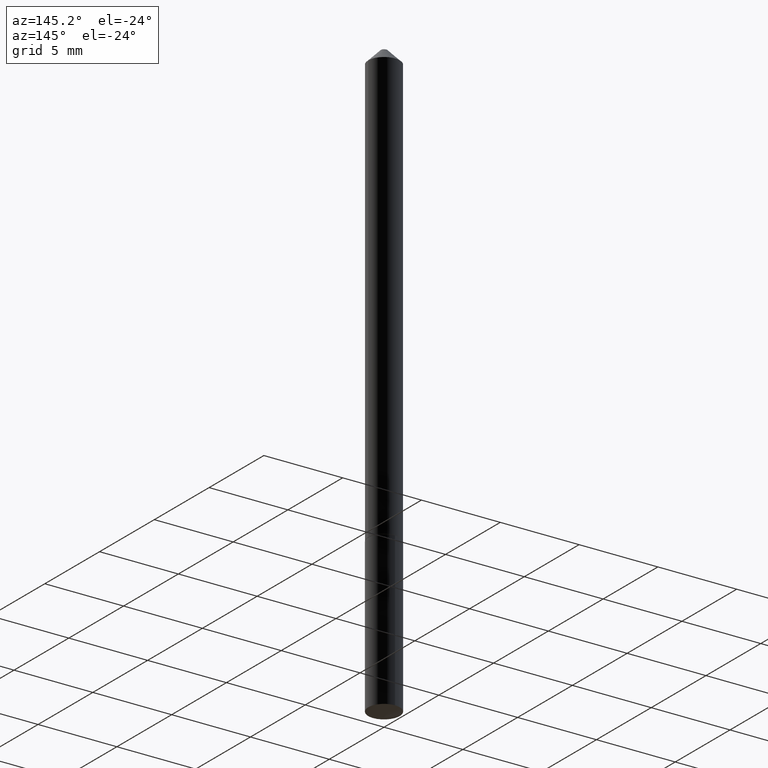
[diagram: clean part render]
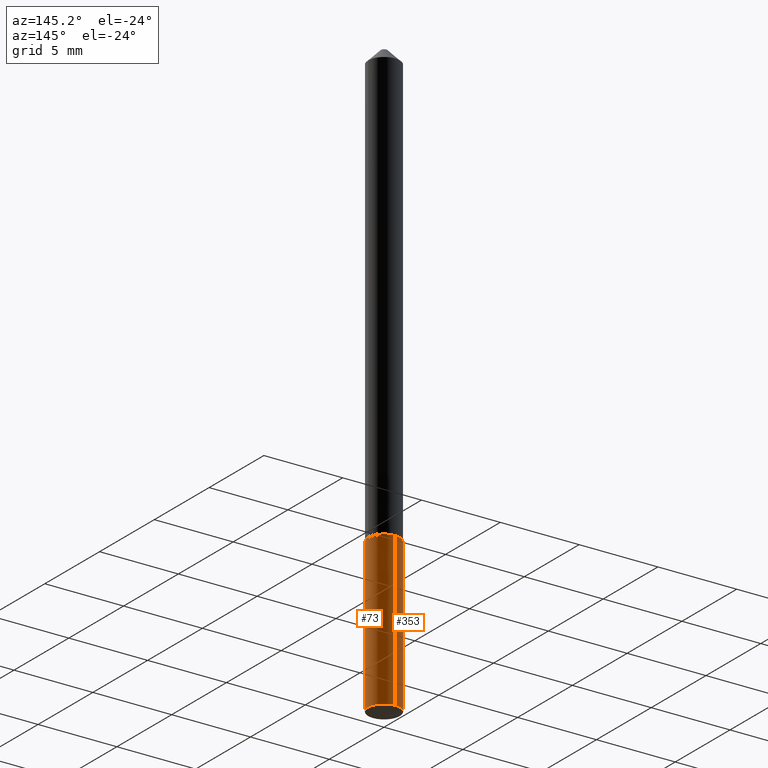
[diagram: same view with one multi-face feature highlighted, each face labeled with its STEP entity id]
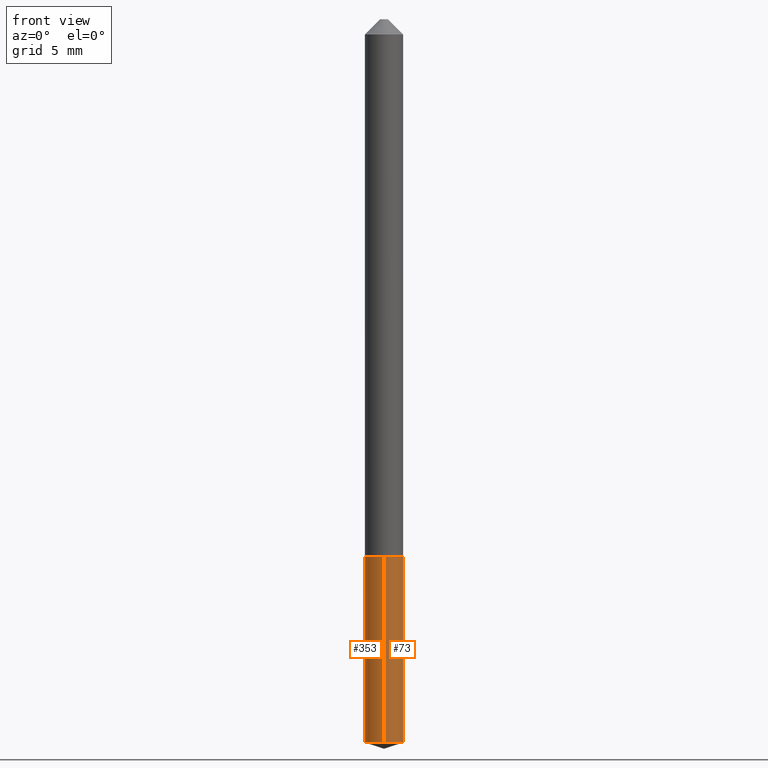
[diagram: same view with one multi-face feature highlighted, each face labeled with its STEP entity id]
A machine part, auxiliary view. The highlighted faces form ONE feature: a constant-radius fillet chain: 2 tangent blend faces with common blend radius 0.9995 mm. The faces share edges in the B-rep.
A second angle (front view) of the same feature is appended — it is thin or edge-on in the first view.
Their STEP definitions:
[1] entity #353 (Cylinder):
#9 = EDGE_CURVE ( 'NONE', #272, #367, #316, .T. ) ;
#22 = CARTESIAN_POINT ( 'NONE',  ( 2.795985665216263153E-16, 0.03934999999999615194, -1.102400000000000047 ) ) ;
#26 = DIRECTION ( 'NONE',  ( -2.445645632149830585E-29, 3.491228113997394942E-15, 1.000000000000000000 ) ) ;
#32 = CARTESIAN_POINT ( 'NONE',  ( -2.747795813669276519E-16, -0.03935000000000385412, -1.102399999999999824 ) ) ;
#37 = DIRECTION ( 'NONE',  ( -2.445645632149830585E-29, 3.491228113997394942E-15, 1.000000000000000000 ) ) ;
#57 = CYLINDRICAL_SURFACE ( 'NONE', #268, 0.03935000000000000303 ) ;
#76 = DIRECTION ( 'NONE',  ( -6.982962677686266711E-15, -1.000000000000000000, 6.942434545525446301E-15 ) ) ;
#81 = ORIENTED_EDGE ( 'NONE', *, *, #253, .F. ) ;
#84 = DIRECTION ( 'NONE',  ( -6.982962677686266711E-15, -1.000000000000000000, 3.471217272762723151E-15 ) ) ;
#88 = ORIENTED_EDGE ( 'NONE', *, *, #9, .T. ) ;
#96 = CARTESIAN_POINT ( 'NONE',  ( -2.747795813669276519E-16, -0.03935000000000385412, -1.102399999999999824 ) ) ;
#105 = CARTESIAN_POINT ( 'NONE',  ( 2.695884811938494470E-29, -3.849009027940684107E-15, -1.102400000000000047 ) ) ;
#118 = ORIENTED_EDGE ( 'NONE', *, *, #149, .F. ) ;
#124 = VERTEX_POINT ( 'NONE', #224 ) ;
#149 = EDGE_CURVE ( 'NONE', #274, #124, #203, .T. ) ;
#179 = CARTESIAN_POINT ( 'NONE',  ( 2.695884811938494470E-29, -3.849009027940684107E-15, -1.102400000000000047 ) ) ;
#180 = EDGE_LOOP ( 'NONE', ( #118, #333, #88, #81 ) ) ;
#203 = LINE ( 'NONE', #22, #360 ) ;
#204 = CIRCLE ( 'NONE', #365, 0.03935000000000000303 ) ;
#209 = AXIS2_PLACEMENT_3D ( 'NONE', #105, #359, #84 ) ;
#224 = CARTESIAN_POINT ( 'NONE',  ( 2.795985665216357323E-16, 0.03934999999999615194, -1.102400000000000047 ) ) ;
#225 = CARTESIAN_POINT ( 'NONE',  ( -2.747795813669182842E-16, -0.03935000000000518638, -1.483692992657611454 ) ) ;
#228 = VECTOR ( 'NONE', #37, 39.37007874015748143 ) ;
#253 = EDGE_CURVE ( 'NONE', #124, #367, #390, .T. ) ;
#263 = CARTESIAN_POINT ( 'NONE',  ( 2.795985665216357323E-16, 0.03934999999999481968, -1.483692992657611898 ) ) ;
#268 = AXIS2_PLACEMENT_3D ( 'NONE', #179, #26, #294 ) ;
#272 = VERTEX_POINT ( 'NONE', #225 ) ;
#274 = VERTEX_POINT ( 'NONE', #263 ) ;
#292 = EDGE_CURVE ( 'NONE', #274, #272, #204, .T. ) ;
#294 = DIRECTION ( 'NONE',  ( -6.982962677686266711E-15, -1.000000000000000000, 3.471217272762723151E-15 ) ) ;
#316 = LINE ( 'NONE', #96, #228 ) ;
#326 = CARTESIAN_POINT ( 'NONE',  ( 3.628392354000919810E-29, -5.180189843577139767E-15, -1.483692992657611676 ) ) ;
#327 = FACE_OUTER_BOUND ( 'NONE', #180, .T. ) ;
#333 = ORIENTED_EDGE ( 'NONE', *, *, #292, .T. ) ;
#352 = DIRECTION ( 'NONE',  ( -2.445645632149830585E-29, 3.491228113997394942E-15, 1.000000000000000000 ) ) ;
#353 = ADVANCED_FACE ( 'NONE', ( #327 ), #57, .T. ) ;
#356 = DIRECTION ( 'NONE',  ( -2.445645632149830585E-29, 3.491228113997394942E-15, 1.000000000000000000 ) ) ;
#359 = DIRECTION ( 'NONE',  ( -2.445645632149830585E-29, 3.491228113997394942E-15, 1.000000000000000000 ) ) ;
#360 = VECTOR ( 'NONE', #352, 39.37007874015748143 ) ;
#365 = AXIS2_PLACEMENT_3D ( 'NONE', #326, #356, #76 ) ;
#367 = VERTEX_POINT ( 'NONE', #32 ) ;
#390 = CIRCLE ( 'NONE', #209, 0.03935000000000000303 ) ;
[2] entity #73 (Cylinder):
#4 = ORIENTED_EDGE ( 'NONE', *, *, #138, .T. ) ;
#9 = EDGE_CURVE ( 'NONE', #272, #367, #316, .T. ) ;
#10 = FACE_OUTER_BOUND ( 'NONE', #93, .T. ) ;
#22 = CARTESIAN_POINT ( 'NONE',  ( 2.795985665216263153E-16, 0.03934999999999615194, -1.102400000000000047 ) ) ;
#32 = CARTESIAN_POINT ( 'NONE',  ( -2.747795813669276519E-16, -0.03935000000000385412, -1.102399999999999824 ) ) ;
#34 = AXIS2_PLACEMENT_3D ( 'NONE', #187, #344, #190 ) ;
#37 = DIRECTION ( 'NONE',  ( -2.445645632149830585E-29, 3.491228113997394942E-15, 1.000000000000000000 ) ) ;
#45 = DIRECTION ( 'NONE',  ( -2.445645632149830585E-29, 3.491228113997394942E-15, 1.000000000000000000 ) ) ;
#73 = ADVANCED_FACE ( 'NONE', ( #10 ), #248, .T. ) ;
#90 = ORIENTED_EDGE ( 'NONE', *, *, #9, .F. ) ;
#93 = EDGE_LOOP ( 'NONE', ( #4, #305, #215, #90 ) ) ;
#96 = CARTESIAN_POINT ( 'NONE',  ( -2.747795813669276519E-16, -0.03935000000000385412, -1.102399999999999824 ) ) ;
#124 = VERTEX_POINT ( 'NONE', #224 ) ;
#138 = EDGE_CURVE ( 'NONE', #272, #274, #262, .T. ) ;
#140 = DIRECTION ( 'NONE',  ( -6.982962677686266711E-15, -1.000000000000000000, 3.471217272762723151E-15 ) ) ;
#148 = AXIS2_PLACEMENT_3D ( 'NONE', #259, #226, #140 ) ;
#149 = EDGE_CURVE ( 'NONE', #274, #124, #203, .T. ) ;
#187 = CARTESIAN_POINT ( 'NONE',  ( 2.695884811938494470E-29, -3.849009027940684107E-15, -1.102400000000000047 ) ) ;
#190 = DIRECTION ( 'NONE',  ( -6.982962677686266711E-15, -1.000000000000000000, 3.471217272762723151E-15 ) ) ;
#191 = CARTESIAN_POINT ( 'NONE',  ( 3.628392354000919810E-29, -5.180189843577139767E-15, -1.483692992657611676 ) ) ;
#203 = LINE ( 'NONE', #22, #360 ) ;
#215 = ORIENTED_EDGE ( 'NONE', *, *, #324, .F. ) ;
#224 = CARTESIAN_POINT ( 'NONE',  ( 2.795985665216357323E-16, 0.03934999999999615194, -1.102400000000000047 ) ) ;
#225 = CARTESIAN_POINT ( 'NONE',  ( -2.747795813669182842E-16, -0.03935000000000518638, -1.483692992657611454 ) ) ;
#226 = DIRECTION ( 'NONE',  ( -2.445645632149830585E-29, 3.491228113997394942E-15, 1.000000000000000000 ) ) ;
#228 = VECTOR ( 'NONE', #37, 39.37007874015748143 ) ;
#248 = CYLINDRICAL_SURFACE ( 'NONE', #34, 0.03935000000000000303 ) ;
#259 = CARTESIAN_POINT ( 'NONE',  ( 2.695884811938494470E-29, -3.849009027940684107E-15, -1.102400000000000047 ) ) ;
#262 = CIRCLE ( 'NONE', #319, 0.03935000000000000303 ) ;
#263 = CARTESIAN_POINT ( 'NONE',  ( 2.795985665216357323E-16, 0.03934999999999481968, -1.483692992657611898 ) ) ;
#272 = VERTEX_POINT ( 'NONE', #225 ) ;
#274 = VERTEX_POINT ( 'NONE', #263 ) ;
#278 = DIRECTION ( 'NONE',  ( -6.982962677686266711E-15, -1.000000000000000000, 6.942434545525446301E-15 ) ) ;
#305 = ORIENTED_EDGE ( 'NONE', *, *, #149, .T. ) ;
#316 = LINE ( 'NONE', #96, #228 ) ;
#317 = CIRCLE ( 'NONE', #148, 0.03935000000000000303 ) ;
#319 = AXIS2_PLACEMENT_3D ( 'NONE', #191, #45, #278 ) ;
#324 = EDGE_CURVE ( 'NONE', #367, #124, #317, .T. ) ;
#344 = DIRECTION ( 'NONE',  ( -2.445645632149830585E-29, 3.491228113997394942E-15, 1.000000000000000000 ) ) ;
#352 = DIRECTION ( 'NONE',  ( -2.445645632149830585E-29, 3.491228113997394942E-15, 1.000000000000000000 ) ) ;
#360 = VECTOR ( 'NONE', #352, 39.37007874015748143 ) ;
#367 = VERTEX_POINT ( 'NONE', #32 ) ;